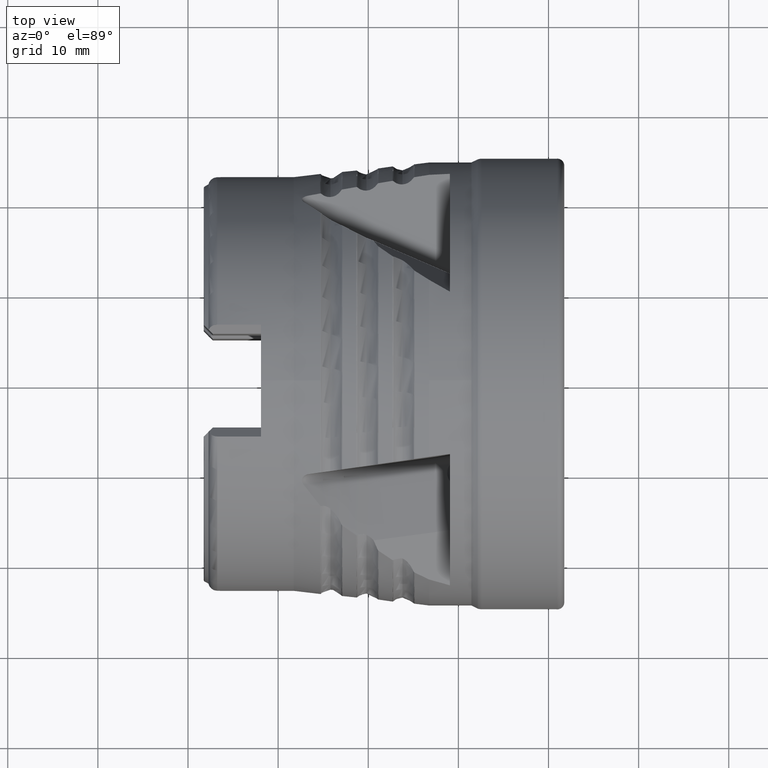
[diagram: clean part render]
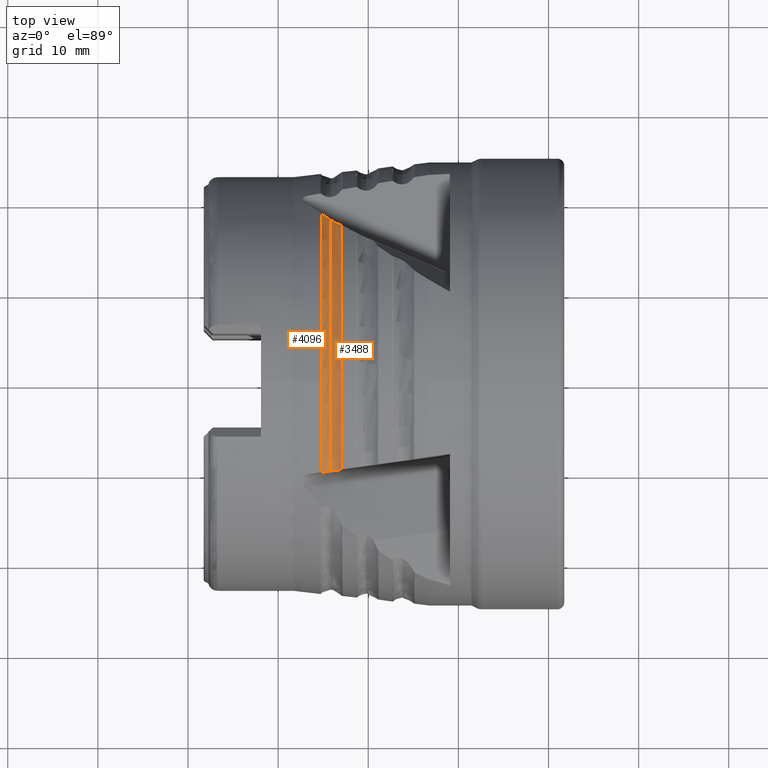
[diagram: same view with one multi-face feature highlighted, each face labeled with its STEP entity id]
A machine part, top view. The highlighted faces form ONE feature: a constant-radius fillet chain: 2 tangent blend faces with common blend radius 1.5 mm. The faces share edges in the B-rep.
Their STEP definitions:
[1] entity #4096 (Torus):
#971 = CARTESIAN_POINT ( 'NONE',  ( -25.02701902081818000, 18.53486401454420100, 13.81151012171917400 ) ) ;
#972 = CARTESIAN_POINT ( 'NONE',  ( -25.18743561933133200, 18.66345963995804900, 13.87589359292250000 ) ) ;
#985 = CARTESIAN_POINT ( 'NONE',  ( -24.84695787031438700, 18.40353255093631900, 13.82653046921828600 ) ) ;
#987 = CARTESIAN_POINT ( 'NONE',  ( -24.59297514474075500, 18.22940738359119800, 13.91305404479872400 ) ) ;
#989 = CARTESIAN_POINT ( 'NONE',  ( -24.50896305784862900, 18.17368168335728700, 13.95291481137574900 ) ) ;
#991 = CARTESIAN_POINT ( 'NONE',  ( -24.34794035082329300, 18.06968031019622600, 14.04599310212182800 ) ) ;
#992 = CARTESIAN_POINT ( 'NONE',  ( -24.27024214387398600, 18.02092385647176100, 14.09940515557196000 ) ) ;
#994 = CARTESIAN_POINT ( 'NONE',  ( -24.19473253947990800, 17.97466169793800700, 14.15813792491427000 ) ) ;
#1095 = CARTESIAN_POINT ( 'NONE',  ( -24.19473253947989700, -10.02067938621152100, 20.57005875769368300 ) ) ;
#1097 = CARTESIAN_POINT ( 'NONE',  ( -24.28425968031162100, -10.03326160531253000, 20.56392934479003600 ) ) ;
#1105 = CARTESIAN_POINT ( 'NONE',  ( -24.37366165908775900, -10.04582623403377200, 20.56663702134369500 ) ) ;
#1107 = CARTESIAN_POINT ( 'NONE',  ( -24.55220452048510900, -10.07091879680471200, 20.59048711545228400 ) ) ;
#1109 = CARTESIAN_POINT ( 'NONE',  ( -24.64142233358298400, -10.08345754272780900, 20.61195544095491500 ) ) ;
#1111 = CARTESIAN_POINT ( 'NONE',  ( -24.89563503267600500, -10.11918480765029000, 20.70169428912133500 ) ) ;
#1112 = CARTESIAN_POINT ( 'NONE',  ( -25.05411361686989500, -10.14145752015535100, 20.79800112976044700 ) ) ;
#1114 = CARTESIAN_POINT ( 'NONE',  ( -25.18743561933140300, -10.16019470566548800, 20.91974168763611500 ) ) ;
#1364 = EDGE_CURVE ( 'NONE', #4542, #4639, #3742, .T. ) ;
#1372 = CARTESIAN_POINT ( 'NONE',  ( -25.18743561933140300, 0.0000000000000000000, 0.0000000000000000000 ) ) ;
#1374 = DIRECTION ( 'NONE',  ( 1.000000000000000000, -0.0000000000000000000, -0.0000000000000000000 ) ) ;
#1376 = DIRECTION ( 'NONE',  ( 0.0000000000000000000, 0.0000000000000000000, -1.000000000000000000 ) ) ;
#1846 = CARTESIAN_POINT ( 'NONE',  ( -25.18743561933140300, -10.16019470566548800, 20.91974168763611500 ) ) ;
#1932 = CARTESIAN_POINT ( 'NONE',  ( -25.18743561933133200, 18.66345963995804900, 13.87589359292250000 ) ) ;
#2196 = FACE_OUTER_BOUND ( 'NONE', #3655, .T. ) ;
#2198 = DIRECTION ( 'NONE',  ( 1.000000000000000000, -0.0000000000000000000, -0.0000000000000000000 ) ) ;
#2201 = CARTESIAN_POINT ( 'NONE',  ( -24.19473253947989700, 0.0000000000000000000, 0.0000000000000000000 ) ) ;
#2203 = DIRECTION ( 'NONE',  ( 0.0000000000000000000, 0.0000000000000000000, -1.000000000000000000 ) ) ;
#2601 = DIRECTION ( 'NONE',  ( 0.0000000000000000000, 0.0000000000000000000, -1.000000000000000000 ) ) ;
#2603 = DIRECTION ( 'NONE',  ( 1.000000000000000000, -0.0000000000000000000, -0.0000000000000000000 ) ) ;
#2604 = CARTESIAN_POINT ( 'NONE',  ( -24.19473253947989700, 0.0000000000000000000, 0.0000000000000000000 ) ) ;
#3162 = B_SPLINE_CURVE_WITH_KNOTS ( 'NONE', 3,
 ( #1095, #1097, #1105, #1107, #1109, #1111, #1112, #1114 ),
 .UNSPECIFIED., .F., .F.,
 ( 4, 2, 2, 4 ),
 ( 0.001946323079081435200, 0.002217309742650411000, 0.002488296406219386300, 0.003030269733357347400 ),
 .UNSPECIFIED. ) ;
#3169 = B_SPLINE_CURVE_WITH_KNOTS ( 'NONE', 3,
 ( #972, #971, #985, #987, #989, #991, #992, #994 ),
 .UNSPECIFIED., .F., .F.,
 ( 4, 2, 2, 4 ),
 ( 0.0002982379834798626800, 0.0009364463493298256600, 0.001255550532254803000, 0.001574654715179780400 ),
 .UNSPECIFIED. ) ;
#3350 = CIRCLE ( 'NONE', #3354, 23.25650766418839400 ) ;
#3354 = AXIS2_PLACEMENT_3D ( 'NONE', #1372, #1374, #1376 ) ;
#3655 = EDGE_LOOP ( 'NONE', ( #5394, #5282, #5790, #5278 ) ) ;
#3742 = CIRCLE ( 'NONE', #3745, 22.88102560324198400 ) ;
#3745 = AXIS2_PLACEMENT_3D ( 'NONE', #2604, #2603, #2601 ) ;
#3771 = VERTEX_POINT ( 'NONE', #1846 ) ;
#3852 = VERTEX_POINT ( 'NONE', #1932 ) ;
#4096 = ADVANCED_FACE ( 'NONE', ( #2196 ), #6160, .F. ) ;
#4230 = EDGE_CURVE ( 'NONE', #3852, #4542, #3169, .T. ) ;
#4245 = EDGE_CURVE ( 'NONE', #4639, #3771, #3162, .T. ) ;
#4276 = EDGE_CURVE ( 'NONE', #3852, #3771, #3350, .T. ) ;
#4542 = VERTEX_POINT ( 'NONE', #6851 ) ;
#4639 = VERTEX_POINT ( 'NONE', #6937 ) ;
#4940 = AXIS2_PLACEMENT_3D ( 'NONE', #2201, #2198, #2203 ) ;
#5278 = ORIENTED_EDGE ( 'NONE', *, *, #4245, .F. ) ;
#5282 = ORIENTED_EDGE ( 'NONE', *, *, #4230, .F. ) ;
#5394 = ORIENTED_EDGE ( 'NONE', *, *, #1364, .F. ) ;
#5790 = ORIENTED_EDGE ( 'NONE', *, *, #4276, .T. ) ;
#6160 = TOROIDAL_SURFACE ( 'NONE', #4940, 24.38102560324198400, 1.500000000000000400 ) ;
#6851 = CARTESIAN_POINT ( 'NONE',  ( -24.19473253947990800, 17.97466169793800700, 14.15813792491427000 ) ) ;
#6937 = CARTESIAN_POINT ( 'NONE',  ( -24.19473253947989700, -10.02067938621152100, 20.57005875769368300 ) ) ;
[2] entity #3488 (Torus):
#17 = CARTESIAN_POINT ( 'NONE',  ( -22.99010624873792000, -9.851380201806188500, 21.32135436419052300 ) ) ;
#19 = CARTESIAN_POINT ( 'NONE',  ( -23.95042184000599800, -9.986343756580733800, 20.60376658255220100 ) ) ;
#125 = CARTESIAN_POINT ( 'NONE',  ( -23.13498331704037300, -9.871741345914651700, 21.12031571619456100 ) ) ;
#126 = CARTESIAN_POINT ( 'NONE',  ( -23.61007601932338300, -9.938511270854522900, 20.73604081335812700 ) ) ;
#127 = CARTESIAN_POINT ( 'NONE',  ( -24.07293935163649600, -10.00356246993094300, 20.57839724287493500 ) ) ;
#139 = CARTESIAN_POINT ( 'NONE',  ( -23.05681546330428600, -9.860755570503688000, 21.21798141440277900 ) ) ;
#243 = CARTESIAN_POINT ( 'NONE',  ( -24.19473253947989700, -10.02067938621152100, 20.57005875769368300 ) ) ;
#256 = CARTESIAN_POINT ( 'NONE',  ( -23.30708127498665000, -9.895928136574998000, 20.94668105104576500 ) ) ;
#315 = CARTESIAN_POINT ( 'NONE',  ( -23.40169046910674300, -9.909224591687159700, 20.86937141588864700 ) ) ;
#318 = CARTESIAN_POINT ( 'NONE',  ( -23.72024265180856200, -9.953994181340345200, 20.68247483055952400 ) ) ;
#954 = EDGE_CURVE ( 'NONE', #4716, #4639, #3263, .T. ) ;
#1316 = EDGE_CURVE ( 'NONE', #4761, #4716, #3718, .T. ) ;
#1364 = EDGE_CURVE ( 'NONE', #4542, #4639, #3742, .T. ) ;
#1539 = CARTESIAN_POINT ( 'NONE',  ( -24.06469202452806000, 17.89499031087687400, 14.25928584683902000 ) ) ;
#1541 = CARTESIAN_POINT ( 'NONE',  ( -23.94054460455209500, 17.82239720586653700, 14.37696480931756300 ) ) ;
#1549 = CARTESIAN_POINT ( 'NONE',  ( -24.19473253947990800, 17.97466169793800700, 14.15813792491427000 ) ) ;
#1551 = CARTESIAN_POINT ( 'NONE',  ( -23.70998797861313200, 17.69250333386279900, 14.62863883077044700 ) ) ;
#1553 = CARTESIAN_POINT ( 'NONE',  ( -23.60248855791459400, 17.63454285323614800, 14.76352427227137600 ) ) ;
#1555 = CARTESIAN_POINT ( 'NONE',  ( -23.40112937847466100, 17.53014117945944500, 15.04885221299425700 ) ) ;
#1557 = CARTESIAN_POINT ( 'NONE',  ( -23.30675554435284300, 17.48348226017236200, 15.20038129275798700 ) ) ;
#1559 = CARTESIAN_POINT ( 'NONE',  ( -23.13514164709062000, 17.40272824080153700, 15.51376156325851100 ) ) ;
#1560 = CARTESIAN_POINT ( 'NONE',  ( -23.05803168247102500, 17.36865889249687100, 15.67506022043745300 ) ) ;
#1562 = CARTESIAN_POINT ( 'NONE',  ( -22.99010624873791300, 17.34091150832618700, 15.84116889198287800 ) ) ;
#1665 = FACE_OUTER_BOUND ( 'NONE', #6165, .T. ) ;
#1669 = DIRECTION ( 'NONE',  ( 1.000000000000000000, -0.0000000000000000000, -0.0000000000000000000 ) ) ;
#1674 = CARTESIAN_POINT ( 'NONE',  ( -24.19473253947989700, 0.0000000000000000000, 0.0000000000000000000 ) ) ;
#1678 = DIRECTION ( 'NONE',  ( 0.0000000000000000000, 0.0000000000000000000, -1.000000000000000000 ) ) ;
#2601 = DIRECTION ( 'NONE',  ( 0.0000000000000000000, 0.0000000000000000000, -1.000000000000000000 ) ) ;
#2603 = DIRECTION ( 'NONE',  ( 1.000000000000000000, -0.0000000000000000000, -0.0000000000000000000 ) ) ;
#2604 = CARTESIAN_POINT ( 'NONE',  ( -24.19473253947989700, 0.0000000000000000000, 0.0000000000000000000 ) ) ;
#3205 = B_SPLINE_CURVE_WITH_KNOTS ( 'NONE', 3,
 ( #1549, #1539, #1541, #1551, #1553, #1555, #1557, #1559, #1560, #1562 ),
 .UNSPECIFIED., .F., .F.,
 ( 4, 2, 2, 2, 4 ),
 ( 0.001574654715179780400, 0.002124206955637628500, 0.002673759196095477000, 0.003223311436553325100, 0.003772863677011173200 ),
 .UNSPECIFIED. ) ;
#3263 = B_SPLINE_CURVE_WITH_KNOTS ( 'NONE', 3,
 ( #17, #139, #125, #256, #315, #126, #318, #19, #127, #243 ),
 .UNSPECIFIED., .F., .F.,
 ( 4, 2, 2, 2, 4 ),
 ( 0.0004717164151135055900, 0.0008403680811054879700, 0.001209019747097470200, 0.001577671413089452900, 0.001946323079081435200 ),
 .UNSPECIFIED. ) ;
#3466 = EDGE_CURVE ( 'NONE', #4542, #4761, #3205, .T. ) ;
#3488 = ADVANCED_FACE ( 'NONE', ( #1665 ), #6059, .F. ) ;
#3718 = CIRCLE ( 'NONE', #3719, 23.48722724810070900 ) ;
#3719 = AXIS2_PLACEMENT_3D ( 'NONE', #5944, #5869, #5761 ) ;
#3742 = CIRCLE ( 'NONE', #3745, 22.88102560324198400 ) ;
#3745 = AXIS2_PLACEMENT_3D ( 'NONE', #2604, #2603, #2601 ) ;
#4542 = VERTEX_POINT ( 'NONE', #6851 ) ;
#4639 = VERTEX_POINT ( 'NONE', #6937 ) ;
#4716 = VERTEX_POINT ( 'NONE', #7003 ) ;
#4761 = VERTEX_POINT ( 'NONE', #7051 ) ;
#5076 = ORIENTED_EDGE ( 'NONE', *, *, #1364, .T. ) ;
#5122 = ORIENTED_EDGE ( 'NONE', *, *, #954, .F. ) ;
#5132 = ORIENTED_EDGE ( 'NONE', *, *, #1316, .F. ) ;
#5145 = ORIENTED_EDGE ( 'NONE', *, *, #3466, .F. ) ;
#5761 = DIRECTION ( 'NONE',  ( 0.0000000000000000000, 0.0000000000000000000, -1.000000000000000000 ) ) ;
#5869 = DIRECTION ( 'NONE',  ( 1.000000000000000000, -0.0000000000000000000, -0.0000000000000000000 ) ) ;
#5944 = CARTESIAN_POINT ( 'NONE',  ( -22.99010624873793100, 0.0000000000000000000, 0.0000000000000000000 ) ) ;
#6059 = TOROIDAL_SURFACE ( 'NONE', #6063, 24.38102560324198400, 1.500000000000000400 ) ;
#6063 = AXIS2_PLACEMENT_3D ( 'NONE', #1674, #1669, #1678 ) ;
#6165 = EDGE_LOOP ( 'NONE', ( #5145, #5076, #5122, #5132 ) ) ;
#6851 = CARTESIAN_POINT ( 'NONE',  ( -24.19473253947990800, 17.97466169793800700, 14.15813792491427000 ) ) ;
#6937 = CARTESIAN_POINT ( 'NONE',  ( -24.19473253947989700, -10.02067938621152100, 20.57005875769368300 ) ) ;
#7003 = CARTESIAN_POINT ( 'NONE',  ( -22.99010624873792000, -9.851380201806188500, 21.32135436419052300 ) ) ;
#7051 = CARTESIAN_POINT ( 'NONE',  ( -22.99010624873791300, 17.34091150832618700, 15.84116889198287800 ) ) ;